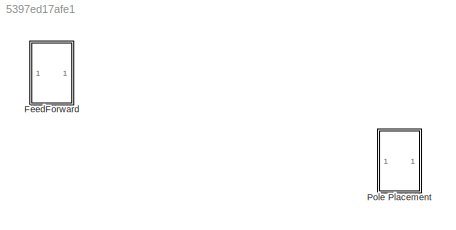
MODEL slx_5397ed17afe1
KIND model
CONFIG AbsTol = auto
CONFIG EnableMultiTasking = off
CONFIG FixedStep = auto
CONFIG MaxStep = auto
CONFIG MinStep = auto
CONFIG RelTol = 1e-3
CONFIG SampleTimeConstraint = Unconstrained
CONFIG SolverName = VariableStepAuto
CONFIG StartTime = 0.0
CONFIG StopTime = 10.0
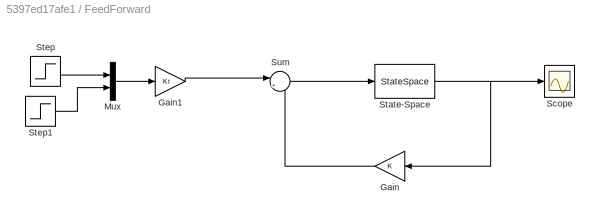
BLOCK [SubSystem] FeedForward
BLOCK [Gain] FeedForward/Gain
  Gain = K
  Multiplication = Matrix(K*u)
  NameLocation = top
BLOCK [Gain] FeedForward/Gain1
  Gain = Kr
  Multiplication = Matrix(K*u)
BLOCK [Mux] FeedForward/Mux
  DisplayOption = bar
  Inputs = 2
BLOCK [Scope] FeedForward/Scope
  Floating = off
  NumInputPorts = 1
  ScopeSpecificationString = Simulink.scopes.TimeScopeBlockCfg('CurrentConfiguration', extmgr.ConfigurationSet(extmgr.Configuration('Core','General UI',true),extmgr.Configuration('Core','Source UI',true),extmgr.Configuration('Sources','WiredSimulink',true,'DataLoggingVariableName','ScopeData1'),extmgr.Configuration('Visuals','Time Domain',true),extmgr.Configuration('Tools','Plot Navigation',true),extmgr.Configuration('Tools',...<+40ch>
BLOCK [StateSpace] FeedForward/State-Space
  InitialCondition = 0
BLOCK [Step] FeedForward/Step
  SampleTime = 0
  Time = 0
BLOCK [Step] FeedForward/Step1
  SampleTime = 0
  Time = 0
BLOCK [Sum] FeedForward/Sum
  Inputs = |+-
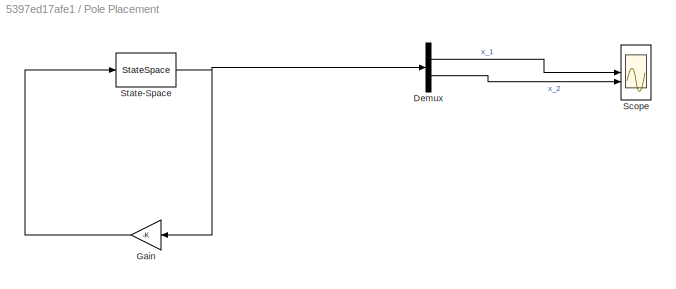
BLOCK [SubSystem] Pole Placement
BLOCK [Demux] Pole Placement/Demux
  Outputs = 2
BLOCK [Gain] Pole Placement/Gain
  Gain = -K
  Multiplication = Matrix(K*u)
  NameLocation = top
BLOCK [Scope] Pole Placement/Scope
  Floating = off
  NumInputPorts = 2
  ScopeSpecificationString = Simulink.scopes.TimeScopeBlockCfg('CurrentConfiguration', extmgr.ConfigurationSet(extmgr.Configuration('Core','General UI',true),extmgr.Configuration('Core','Source UI',true),extmgr.Configuration('Sources','WiredSimulink',true),extmgr.Configuration('Visuals','Time Domain',true,'SerializedDisplays',{struct('MinYLimReal','-1.25','MaxYLimReal','1.25','YLabelReal','','MinYLimMag','0.00000','MaxYLimMag...<+1345ch>
BLOCK [StateSpace] Pole Placement/State-Space
  A = A
  B = B
  C = eye(2)
  D = [0;0]
  InitialCondition = [1;-1;]
LINE FeedForward/Gain1:1 -> FeedForward/Sum:1
LINE FeedForward/Gain:1 -> FeedForward/Sum:2
LINE FeedForward/Mux:1 -> FeedForward/Gain1:1
NET FeedForward/State-Space:1 -> FeedForward/Gain:1, FeedForward/Scope:1
LINE FeedForward/Step1:1 -> FeedForward/Mux:2
LINE FeedForward/Step:1 -> FeedForward/Mux:1
LINE FeedForward/Sum:1 -> FeedForward/State-Space:1
LINE Pole Placement/Demux:1 -> Pole Placement/Scope:1
LINE Pole Placement/Demux:2 -> Pole Placement/Scope:2
LINE Pole Placement/Gain:1 -> Pole Placement/State-Space:1
NET Pole Placement/State-Space:1 -> Pole Placement/Demux:1, Pole Placement/Gain:1
note: NET lines group one-source signal fan-out (src -> all destinations, sorted); 1:1 wires keep LINE
